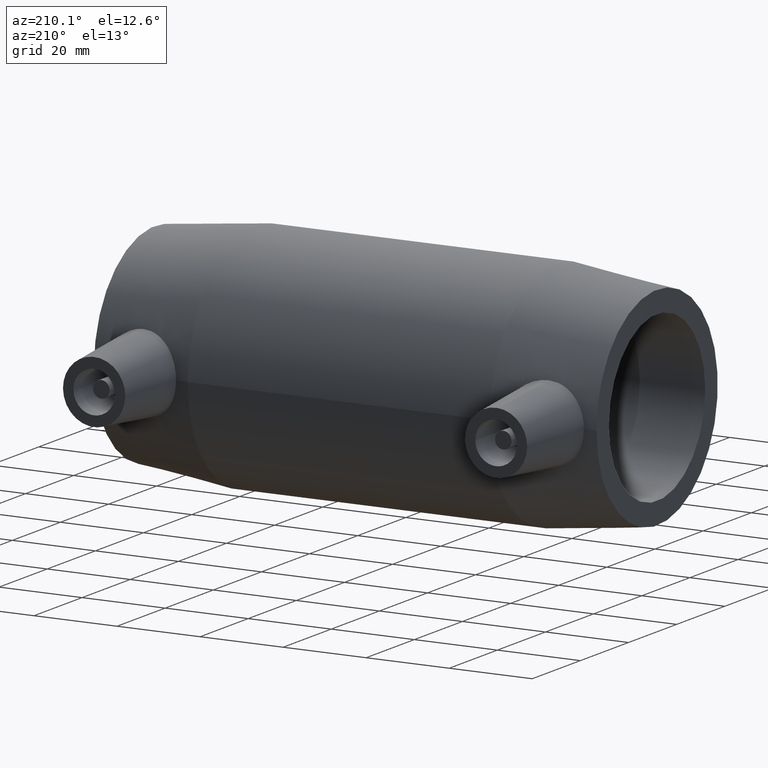
[diagram: clean part render]
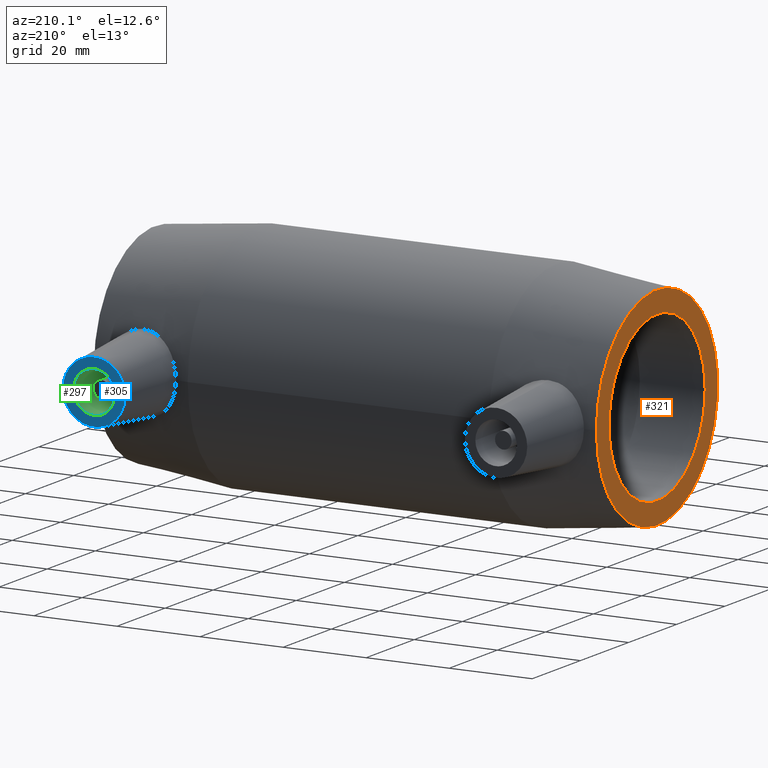
[diagram: same view with three faces highlighted in distinct colors, each labeled with its STEP entity id]
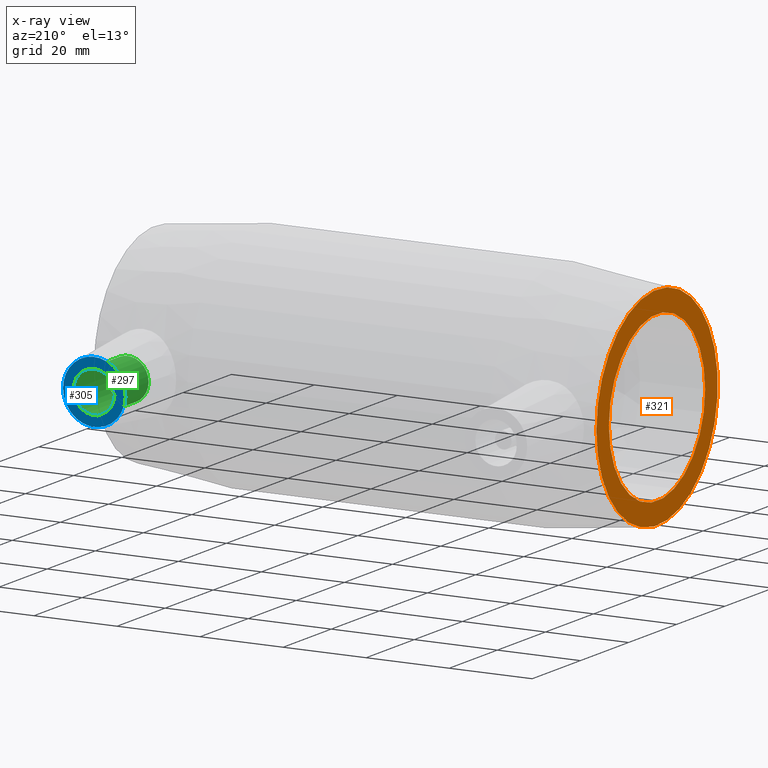
[diagram: x-ray of the same camera — body ghosted, the three highlighted faces saturated]
A machine part, auxiliary view with three faces highlighted in distinct colors.
The next image is the same camera in x-ray (body ghosted, the three faces saturated) — at least one of them is partly hidden behind the body in this view.
Their STEP definitions:

[orange] entity #321 — the highlighted planar face has unit normal (-1, 0, 0).
#48=FACE_BOUND('',#141,.T.);
#87=FACE_OUTER_BOUND('',#140,.T.);
#140=EDGE_LOOP('',(#278));
#141=EDGE_LOOP('',(#279));
#169=CIRCLE('',#375,20.);
#170=CIRCLE('',#377,25.2);
#197=VERTEX_POINT('',#634);
#198=VERTEX_POINT('',#637);
#225=EDGE_CURVE('',#197,#197,#169,.T.);
#226=EDGE_CURVE('',#198,#198,#170,.T.);
#278=ORIENTED_EDGE('',*,*,#226,.F.);
#279=ORIENTED_EDGE('',*,*,#225,.T.);
#294=PLANE('',#376);
#321=ADVANCED_FACE('',(#87,#48),#294,.T.);
#375=AXIS2_PLACEMENT_3D('',#635,#481,#482);
#376=AXIS2_PLACEMENT_3D('',#636,#483,#484);
#377=AXIS2_PLACEMENT_3D('',#638,#485,#486);
#481=DIRECTION('center_axis',(1.,0.,0.));
#482=DIRECTION('ref_axis',(0.,0.,-1.));
#483=DIRECTION('center_axis',(-1.,0.,0.));
#484=DIRECTION('ref_axis',(0.,0.,1.));
#485=DIRECTION('center_axis',(1.,0.,0.));
#486=DIRECTION('ref_axis',(0.,0.,-1.));
#634=CARTESIAN_POINT('',(-60.5,20.,0.));
#635=CARTESIAN_POINT('Origin',(-60.5,0.,0.));
#636=CARTESIAN_POINT('Origin',(-60.5,25.2,0.));
#637=CARTESIAN_POINT('',(-60.5,25.2,0.));
#638=CARTESIAN_POINT('Origin',(-60.5,0.,0.));

[blue] entity #305 — the highlighted planar face has unit normal (0, -1, 0).
#31=FACE_BOUND('',#108,.T.);
#71=FACE_OUTER_BOUND('',#107,.T.);
#107=EDGE_LOOP('',(#245));
#108=EDGE_LOOP('',(#246));
#148=CIRCLE('',#331,5.);
#154=CIRCLE('',#344,7.5);
#174=VERTEX_POINT('',#499);
#180=VERTEX_POINT('',#518);
#202=EDGE_CURVE('',#174,#174,#148,.T.);
#208=EDGE_CURVE('',#180,#180,#154,.T.);
#245=ORIENTED_EDGE('',*,*,#208,.T.);
#246=ORIENTED_EDGE('',*,*,#202,.T.);
#288=PLANE('',#345);
#305=ADVANCED_FACE('',(#71,#31),#288,.F.);
#331=AXIS2_PLACEMENT_3D('',#500,#393,#394);
#344=AXIS2_PLACEMENT_3D('',#519,#419,#420);
#345=AXIS2_PLACEMENT_3D('',#555,#421,#422);
#393=DIRECTION('center_axis',(0.,-1.,0.));
#394=DIRECTION('ref_axis',(1.,0.,0.));
#419=DIRECTION('center_axis',(0.,1.,0.));
#420=DIRECTION('ref_axis',(-1.,0.,0.));
#421=DIRECTION('center_axis',(0.,-1.,0.));
#422=DIRECTION('ref_axis',(0.,0.,1.));
#499=CARTESIAN_POINT('',(43.4,46.,-6.12323399573677E-16));
#500=CARTESIAN_POINT('Origin',(48.4,46.,0.));
#518=CARTESIAN_POINT('',(55.9,46.,9.18485099360515E-16));
#519=CARTESIAN_POINT('Origin',(48.4,46.,0.));
#555=CARTESIAN_POINT('Origin',(48.4,46.,1.2335811384724E-16));

[green] entity #297 — the highlighted cylindrical surface (bore or boss wall) has radius 5 mm, axis along (0, 1, 0).
#24=FACE_BOUND('',#93,.T.);
#52=CYLINDRICAL_SURFACE('',#329,5.);
#63=FACE_OUTER_BOUND('',#92,.T.);
#92=EDGE_LOOP('',(#230));
#93=EDGE_LOOP('',(#231));
#147=CIRCLE('',#330,5.);
#148=CIRCLE('',#331,5.);
#173=VERTEX_POINT('',#497);
#174=VERTEX_POINT('',#499);
#201=EDGE_CURVE('',#173,#173,#147,.T.);
#202=EDGE_CURVE('',#174,#174,#148,.T.);
#230=ORIENTED_EDGE('',*,*,#201,.F.);
#231=ORIENTED_EDGE('',*,*,#202,.F.);
#297=ADVANCED_FACE('',(#63,#24),#52,.F.);
#329=AXIS2_PLACEMENT_3D('',#496,#389,#390);
#330=AXIS2_PLACEMENT_3D('',#498,#391,#392);
#331=AXIS2_PLACEMENT_3D('',#500,#393,#394);
#389=DIRECTION('center_axis',(0.,1.,0.));
#390=DIRECTION('ref_axis',(1.,0.,0.));
#391=DIRECTION('center_axis',(0.,1.,0.));
#392=DIRECTION('ref_axis',(1.,0.,0.));
#393=DIRECTION('center_axis',(0.,-1.,0.));
#394=DIRECTION('ref_axis',(1.,0.,0.));
#496=CARTESIAN_POINT('Origin',(48.4,46.,0.));
#497=CARTESIAN_POINT('',(43.4,32.,-6.12323399573677E-16));
#498=CARTESIAN_POINT('Origin',(48.4,32.,0.));
#499=CARTESIAN_POINT('',(43.4,46.,-6.12323399573677E-16));
#500=CARTESIAN_POINT('Origin',(48.4,46.,0.));